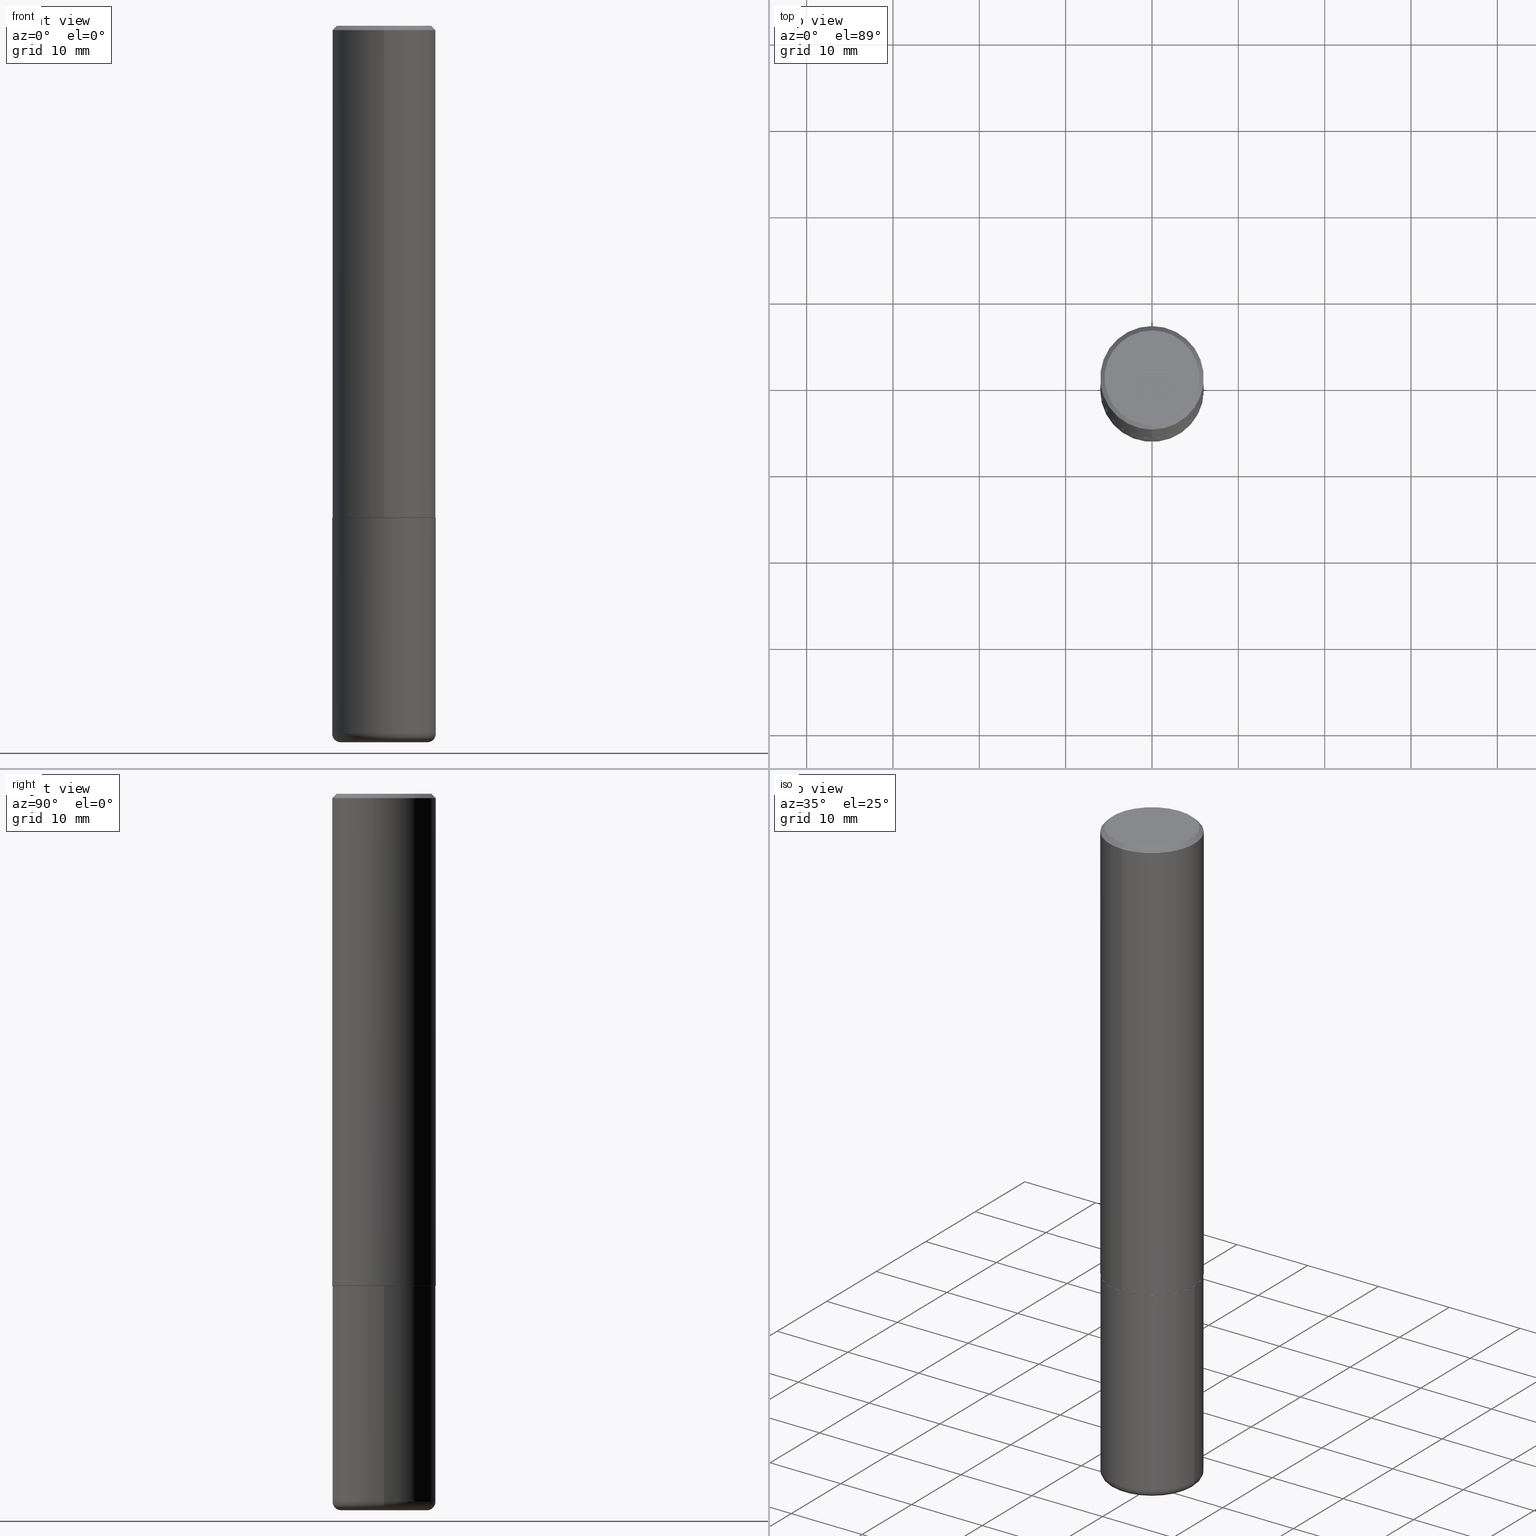
[diagram: canonical four-view strip — front | top / right | iso, engineering-drawing reading convention]
A machine part, canonical four-view strip (front | top / right | iso — engineering-drawing reading convention). The complete STEP part file that produces these views, byte-faithful:
ISO-10303-21;
HEADER;
FILE_DESCRIPTION (( 'STEP AP203' ),
    '1' );
FILE_NAME ('47164.STEP',
    '2024-03-06T00:30:45',
    ( '' ),
    ( '' ),
    'SwSTEP 2.0',
    'SolidWorks 2023',
    '' );
FILE_SCHEMA (( 'CONFIG_CONTROL_DESIGN' ));
ENDSEC;

DATA;
#1 = CIRCLE ( 'NONE', #234, 0.2361999999999999933 ) ;
#2 = AXIS2_PLACEMENT_3D ( 'NONE', #202, #211, #338 ) ;
#3 = CARTESIAN_POINT ( 'NONE',  ( 5.487876547960065873E-29, -7.835233272497903917E-15, -2.244100000000000428 ) ) ;
#4 = CIRCLE ( 'NONE', #101, 0.2352000000000000202 ) ;
#5 = ADVANCED_FACE ( 'NONE', ( #347 ), #193, .T. ) ;
#6 =( NAMED_UNIT ( * ) PLANE_ANGLE_UNIT ( ) SI_UNIT ( $, .RADIAN. ) );
#7 = VERTEX_POINT ( 'NONE', #119 ) ;
#8 = LENGTH_MEASURE_WITH_UNIT ( LENGTH_MEASURE( 0.02539999999999999897 ), #98 );
#9 = PRODUCT_DEFINITION ( 'UNKNOWN', '', #311, #222 ) ;
#10 = CIRCLE ( 'NONE', #118, 0.2362000000000002709 ) ;
#11 = CARTESIAN_POINT ( 'NONE',  ( 4.886397103869442398E-31, -6.989464944289237832E-17, -0.02000000000000009062 ) ) ;
#12 = EDGE_LOOP ( 'NONE', ( #265, #291, #300, #360 ) ) ;
#13 = ORIENTED_EDGE ( 'NONE', *, *, #292, .T. ) ;
#14 = VERTEX_POINT ( 'NONE', #122 ) ;
#15 = PERSON_AND_ORGANIZATION ( #139, #76 ) ;
#16 = DIRECTION ( 'NONE',  ( -2.443198551934710321E-29, 3.494732472144603410E-15, 1.000000000000000000 ) ) ;
#17 = VECTOR ( 'NONE', #130, 39.37007874015748143 ) ;
#18 = ADVANCED_FACE ( 'NONE', ( #85 ), #235, .T. ) ;
#19 = DIRECTION ( 'NONE',  ( 1.000000000000000000, -6.982962677686266711E-15, 4.876176775795936353E-29 ) ) ;
#20 = CARTESIAN_POINT ( 'NONE',  ( 1.509716530915772690E-15, 0.2162000000000002808, -9.024733938762408486E-16 ) ) ;
#21 = CC_DESIGN_PERSON_AND_ORGANIZATION_ASSIGNMENT ( #301, #208, ( #311 ) ) ;
#22 = CALENDAR_DATE ( 2024, 5, 3 ) ;
#23 = CARTESIAN_POINT ( 'NONE',  ( 5.482781870396684000E-29, -7.842529140739704038E-15, -2.244100000000000428 ) ) ;
#24 = AXIS2_PLACEMENT_3D ( 'NONE', #199, #297, #232 ) ;
#25 = APPROVAL_DATE_TIME ( #182, #155 ) ;
#26 = DIRECTION ( 'NONE',  ( -2.445468806185136597E-29, 3.491481338843145583E-15, 1.000000000000000000 ) ) ;
#27 = ADVANCED_FACE ( 'NONE', ( #59 ), #88, .F. ) ;
#28 = LINE ( 'NONE', #384, #143 ) ;
#29 = ADVANCED_FACE ( 'NONE', ( #339 ), #400, .T. ) ;
#30 = DIRECTION ( 'NONE',  ( 1.000000000000000000, -6.982962677686265922E-15, 0.000000000000000000 ) ) ;
#31 = AXIS2_PLACEMENT_3D ( 'NONE', #247, #371, #82 ) ;
#32 = CARTESIAN_POINT ( 'NONE',  ( -1.649375784469496920E-15, -0.2362000000000001321, 8.254558099205557624E-16 ) ) ;
#33 = DIRECTION ( 'NONE',  ( -2.445468806185136597E-29, 3.491481338843145583E-15, 1.000000000000000000 ) ) ;
#34 = DIRECTION ( 'NONE',  ( -2.443198551934710321E-29, 3.494732472144603016E-15, 1.000000000000000000 ) ) ;
#35 = AXIS2_PLACEMENT_3D ( 'NONE', #373, #307, #337 ) ;
#36 =( GEOMETRIC_REPRESENTATION_CONTEXT ( 3 ) GLOBAL_UNCERTAINTY_ASSIGNED_CONTEXT ( ( #92 ) ) GLOBAL_UNIT_ASSIGNED_CONTEXT ( ( #358, #6, #256 ) ) REPRESENTATION_CONTEXT ( 'NONE', 'WORKASPACE' ) );
#37 = DIRECTION ( 'NONE',  ( -2.443198551934710321E-29, 3.494732472144603410E-15, 1.000000000000000000 ) ) ;
#38 = DIRECTION ( 'NONE',  ( -6.982962677686265922E-15, -1.000000000000000000, 3.487819265831411744E-15 ) ) ;
#39 = EDGE_LOOP ( 'NONE', ( #142, #168, #394, #179 ) ) ;
#40 = LINE ( 'NONE', #294, #374 ) ;
#41 = ORIENTED_EDGE ( 'NONE', *, *, #105, .F. ) ;
#42 = CONICAL_SURFACE ( 'NONE', #35, 0.2352000000000000202, 0.7853981633975336552 ) ;
#43 = LINE ( 'NONE', #364, #204 ) ;
#44 = LOCAL_TIME ( 19, 30, 45.00000000000000000, #217 ) ;
#45 = ORIENTED_EDGE ( 'NONE', *, *, #407, .T. ) ;
#46 = EDGE_LOOP ( 'NONE', ( #403, #73, #298, #113 ) ) ;
#47 = FACE_OUTER_BOUND ( 'NONE', #12, .T. ) ;
#48 = VERTEX_POINT ( 'NONE', #112 ) ;
#49 = APPROVAL_ROLE ( '' ) ;
#50 = DIRECTION ( 'NONE',  ( 7.105427357601001859E-15, 1.000000000000000000, -3.491481338843145583E-15 ) ) ;
#51 = DIRECTION ( 'NONE',  ( 1.000000000000000000, -6.982962677686266711E-15, 4.876176775795936353E-29 ) ) ;
#52 = AXIS2_PLACEMENT_3D ( 'NONE', #194, #316, #30 ) ;
#53 = APPROVAL_PERSON_ORGANIZATION ( #15, #354, #49 ) ;
#54 = DIRECTION ( 'NONE',  ( -6.982962677686265922E-15, -1.000000000000000000, 3.494732472144603410E-15 ) ) ;
#55 = ORIENTED_EDGE ( 'NONE', *, *, #94, .F. ) ;
#56 = MECHANICAL_CONTEXT ( 'NONE', #187, 'mechanical' ) ;
#57 = CARTESIAN_POINT ( 'NONE',  ( 5.482781870396684000E-29, -7.842529140739704038E-15, -2.244100000000000428 ) ) ;
#58 = PERSON_AND_ORGANIZATION_ROLE ( 'classification_officer' ) ;
#59 = FACE_OUTER_BOUND ( 'NONE', #86, .T. ) ;
#60 = CIRCLE ( 'NONE', #260, 0.1968000000000000027 ) ;
#61 = EDGE_CURVE ( 'NONE', #228, #117, #4, .T. ) ;
#62 = CARTESIAN_POINT ( 'NONE',  ( 0.2361999999999999933, -1.649375784469496131E-15, 1.151752954443000088E-29 ) ) ;
#63 = DIRECTION ( 'NONE',  ( 4.937700262164537787E-15, 0.7071067811865436870, -0.7071067811865513475 ) ) ;
#64 = VECTOR ( 'NONE', #63, 39.37007874015748143 ) ;
#65 = DIRECTION ( 'NONE',  ( -6.982962677686265922E-15, -1.000000000000000000, 3.494732472144603410E-15 ) ) ;
#66 = ADVANCED_FACE ( 'NONE', ( #313 ), #277, .T. ) ;
#67 = DIRECTION ( 'NONE',  ( -4.937700262164969294E-15, -0.7071067811866054154, 0.7071067811864896191 ) ) ;
#68 = CIRCLE ( 'NONE', #275, 0.2352000000000000202 ) ;
#69 = ADVANCED_FACE ( 'NONE', ( #121 ), #380, .T. ) ;
#70 = DIRECTION ( 'NONE',  ( -2.445468806185136597E-29, 3.491481338843145583E-15, 1.000000000000000000 ) ) ;
#71 = ORIENTED_EDGE ( 'NONE', *, *, #151, .F. ) ;
#72 = ADVANCED_FACE ( 'NONE', ( #246 ), #90, .T. ) ;
#73 = ORIENTED_EDGE ( 'NONE', *, *, #252, .T. ) ;
#74 = CIRCLE ( 'NONE', #398, 0.2362000000000000210 ) ;
#75 = CARTESIAN_POINT ( 'NONE',  ( 5.480338671844748839E-29, -7.839034408267561952E-15, -2.243100000000000094 ) ) ;
#76 = ORGANIZATION ( 'UNSPECIFIED', 'UNSPECIFIED', '' ) ;
#77 = AXIS2_PLACEMENT_3D ( 'NONE', #23, #153, #377 ) ;
#78 = ORIENTED_EDGE ( 'NONE', *, *, #99, .F. ) ;
#79 = ADVANCED_FACE ( 'NONE', ( #180 ), #242, .F. ) ;
#80 = ORIENTED_EDGE ( 'NONE', *, *, #248, .F. ) ;
#81 = APPLICATION_PROTOCOL_DEFINITION ( 'international standard', 'config_control_design', 1994, #412 ) ;
#82 = DIRECTION ( 'NONE',  ( 6.982962677686265922E-15, 1.000000000000000000, -3.487819265831411744E-15 ) ) ;
#83 = ADVANCED_FACE ( 'NONE', ( #116 ), #42, .T. ) ;
#84 = AXIS2_PLACEMENT_3D ( 'NONE', #167, #393, #104 ) ;
#85 = FACE_OUTER_BOUND ( 'NONE', #262, .T. ) ;
#86 = EDGE_LOOP ( 'NONE', ( #41, #331 ) ) ;
#87 = PERSON_AND_ORGANIZATION ( #139, #76 ) ;
#88 = PLANE ( 'NONE',  #254 ) ;
#89 = CALENDAR_DATE ( 2024, 5, 3 ) ;
#90 = CYLINDRICAL_SURFACE ( 'NONE', #219, 0.2362000000000001321 ) ;
#91 = CARTESIAN_POINT ( 'NONE',  ( 7.894706947007477118E-29, -1.127154920618732880E-14, -3.228299999999999947 ) ) ;
#92 = UNCERTAINTY_MEASURE_WITH_UNIT (LENGTH_MEASURE( 1.000000000000000082E-05 ), #358, 'distance_accuracy_value', 'NONE');
#93 = ADVANCED_BREP_SHAPE_REPRESENTATION ( '47164', ( #334, #346, #2 ), #36 ) ;
#94 = EDGE_CURVE ( 'NONE', #231, #257, #324, .T. ) ;
#95 = DIRECTION ( 'NONE',  ( 2.438088387897960049E-29, -3.491481338843145188E-15, -1.000000000000000000 ) ) ;
#96 = CARTESIAN_POINT ( 'NONE',  ( 1.656106381740712274E-29, -2.048112544989781332E-14, -3.267700000000000937 ) ) ;
#97 = VECTOR ( 'NONE', #34, 39.37007874015748143 ) ;
#98 =( LENGTH_UNIT ( ) NAMED_UNIT ( * ) SI_UNIT ( $, .METRE. ) );
#99 = EDGE_CURVE ( 'NONE', #408, #397, #10, .T. ) ;
#100 = ORIENTED_EDGE ( 'NONE', *, *, #248, .T. ) ;
#101 = AXIS2_PLACEMENT_3D ( 'NONE', #57, #278, #413 ) ;
#102 = LOCAL_TIME ( 19, 30, 45.00000000000000000, #115 ) ;
#103 = CC_DESIGN_APPROVAL ( #155, ( #311 ) ) ;
#104 = DIRECTION ( 'NONE',  ( 1.000000000000000000, -6.982962677686261977E-15, 0.000000000000000000 ) ) ;
#105 = EDGE_CURVE ( 'NONE', #117, #228, #68, .T. ) ;
#106 = ORIENTED_EDGE ( 'NONE', *, *, #163, .T. ) ;
#107 = CARTESIAN_POINT ( 'NONE',  ( 0.1968000000000000027, -1.264579626115598374E-14, -3.228299999999999947 ) ) ;
#108 = ORIENTED_EDGE ( 'NONE', *, *, #359, .F. ) ;
#109 = CIRCLE ( 'NONE', #125, 0.03940000000000033753 ) ;
#110 = VERTEX_POINT ( 'NONE', #212 ) ;
#111 = PERSON_AND_ORGANIZATION_ROLE ( 'design_supplier' ) ;
#112 = CARTESIAN_POINT ( 'NONE',  ( 1.579546157692634608E-15, 0.2162000000000002808, -1.049385627274817561E-15 ) ) ;
#113 = ORIENTED_EDGE ( 'NONE', *, *, #352, .F. ) ;
#114 = CC_DESIGN_PERSON_AND_ORGANIZATION_ASSIGNMENT ( #375, #58, ( #399 ) ) ;
#115 = COORDINATED_UNIVERSAL_TIME_OFFSET ( 5, 0, .BEHIND. ) ;
#116 = FACE_OUTER_BOUND ( 'NONE', #388, .T. ) ;
#117 = VERTEX_POINT ( 'NONE', #127 ) ;
#118 = AXIS2_PLACEMENT_3D ( 'NONE', #302, #16, #145 ) ;
#119 = CARTESIAN_POINT ( 'NONE',  ( 0.1968000000000000027, -1.278336062590640454E-14, -3.267700000000000937 ) ) ;
#120 = SECURITY_CLASSIFICATION_LEVEL ( 'unclassified' ) ;
#121 = FACE_OUTER_BOUND ( 'NONE', #171, .T. ) ;
#122 = CARTESIAN_POINT ( 'NONE',  ( -1.551844647095920733E-15, -0.2162000000000002808, 4.617366936805109079E-16 ) ) ;
#123 = CARTESIAN_POINT ( 'NONE',  ( -0.2362000000000001321, -9.593247264321970832E-15, -3.228299999999999947 ) ) ;
#124 = CONICAL_SURFACE ( 'NONE', #381, 0.2361999999999999933, 0.7853981633974463916 ) ;
#125 = AXIS2_PLACEMENT_3D ( 'NONE', #107, #134, #290 ) ;
#126 = CARTESIAN_POINT ( 'NONE',  ( -0.2362000000000000766, -7.875089297477259967E-15, -2.244100000000000428 ) ) ;
#127 = CARTESIAN_POINT ( 'NONE',  ( -1.642392821791755093E-15, -0.2352000000000078750, -2.244099999999999540 ) ) ;
#128 = DIRECTION ( 'NONE',  ( 2.443198551934710321E-29, -3.494732472144603410E-15, -1.000000000000000000 ) ) ;
#129 = AXIS2_PLACEMENT_3D ( 'NONE', #205, #323, #390 ) ;
#130 = DIRECTION ( 'NONE',  ( -2.445468806185136877E-29, 3.491481338843145188E-15, 1.000000000000000000 ) ) ;
#131 = ORIENTED_EDGE ( 'NONE', *, *, #61, .T. ) ;
#132 = AXIS2_PLACEMENT_3D ( 'NONE', #75, #327, #230 ) ;
#133 = CC_DESIGN_SECURITY_CLASSIFICATION ( #399, ( #311 ) ) ;
#134 = DIRECTION ( 'NONE',  ( -6.982962677686266711E-15, -1.000000000000000000, 3.491481338843145583E-15 ) ) ;
#135 = CLOSED_SHELL ( 'NONE', ( #69, #329, #173, #66, #5, #227 ) ) ;
#136 = VERTEX_POINT ( 'NONE', #320 ) ;
#137 = ORIENTED_EDGE ( 'NONE', *, *, #238, .T. ) ;
#138 = DIRECTION ( 'NONE',  ( 1.000000000000000000, -6.982962677686262766E-15, 4.883557194083112340E-29 ) ) ;
#139 = PERSON ( 'UNSPECIFIED', 'UNSPECIFIED', 'UNSPECIFIED', ('UNSPECIFIED'), ('UNSPECIFIED'), ('UNSPECIFIED') ) ;
#140 = EDGE_LOOP ( 'NONE', ( #225, #156, #100, #13 ) ) ;
#141 = CARTESIAN_POINT ( 'NONE',  ( 7.991058417971172834E-29, -1.140911357093774960E-14, -3.267700000000000937 ) ) ;
#142 = ORIENTED_EDGE ( 'NONE', *, *, #314, .T. ) ;
#143 = VECTOR ( 'NONE', #67, 39.37007874015748143 ) ;
#144 = DATE_AND_TIME ( #147, #192 ) ;
#145 = DIRECTION ( 'NONE',  ( -6.982962677686265922E-15, -1.000000000000000000, 3.469747663417773058E-15 ) ) ;
#146 = EDGE_CURVE ( 'NONE', #397, #207, #322, .T. ) ;
#147 = CALENDAR_DATE ( 2024, 5, 3 ) ;
#148 = DIRECTION ( 'NONE',  ( 2.443198551934710321E-29, -3.494732472144603016E-15, -1.000000000000000000 ) ) ;
#149 = COORDINATED_UNIVERSAL_TIME_OFFSET ( 5, 0, .BEHIND. ) ;
#150 = DIRECTION ( 'NONE',  ( -6.982962677686265922E-15, -1.000000000000000000, 3.494732472144603016E-15 ) ) ;
#151 = EDGE_CURVE ( 'NONE', #110, #241, #74, .T. ) ;
#152 = COORDINATED_UNIVERSAL_TIME_OFFSET ( 5, 0, .BEHIND. ) ;
#153 = DIRECTION ( 'NONE',  ( -2.443198551934710321E-29, 3.494732472144603410E-15, 1.000000000000000000 ) ) ;
#154 = APPROVAL_DATE_TIME ( #144, #354 ) ;
#155 = APPROVAL ( #345, 'UNSPECIFIED' ) ;
#156 = ORIENTED_EDGE ( 'NONE', *, *, #238, .F. ) ;
#157 = CARTESIAN_POINT ( 'NONE',  ( 1.674749228186611702E-15, 0.2351999999999921653, -2.244100000000000872 ) ) ;
#158 = CARTESIAN_POINT ( 'NONE',  ( 1.649375784469496525E-15, 0.2361999999999999378, -0.02000000000000091288 ) ) ;
#159 = CIRCLE ( 'NONE', #340, 0.2361999999999999933 ) ;
#160 = DIRECTION ( 'NONE',  ( 6.982962677686265922E-15, 1.000000000000000000, -3.487819265831411744E-15 ) ) ;
#161 = DIRECTION ( 'NONE',  ( 1.000000000000000000, -6.982962677686268288E-15, 0.000000000000000000 ) ) ;
#162 = CARTESIAN_POINT ( 'NONE',  ( -1.649375784469443080E-15, -0.2362000000000081257, -2.243099999999999206 ) ) ;
#163 = EDGE_CURVE ( 'NONE', #117, #397, #28, .T. ) ;
#164 = ORIENTED_EDGE ( 'NONE', *, *, #105, .T. ) ;
#165 = DIRECTION ( 'NONE',  ( 1.000000000000000000, -6.982962677686261977E-15, 0.000000000000000000 ) ) ;
#166 = ORIENTED_EDGE ( 'NONE', *, *, #289, .T. ) ;
#167 = CARTESIAN_POINT ( 'NONE',  ( 7.991058417971172834E-29, -1.140911357093774960E-14, -3.267700000000000937 ) ) ;
#168 = ORIENTED_EDGE ( 'NONE', *, *, #94, .T. ) ;
#169 = ADVANCED_FACE ( 'NONE', ( #315 ), #124, .T. ) ;
#170 = CARTESIAN_POINT ( 'NONE',  ( 7.894706947007477118E-29, -1.127154920618732880E-14, -3.228299999999999947 ) ) ;
#171 = EDGE_LOOP ( 'NONE', ( #269, #206, #71, #216 ) ) ;
#172 = ORIENTED_EDGE ( 'NONE', *, *, #376, .T. ) ;
#173 = ADVANCED_FACE ( 'NONE', ( #253 ), #383, .F. ) ;
#174 = COORDINATED_UNIVERSAL_TIME_OFFSET ( 5, 0, .BEHIND. ) ;
#175 = DIRECTION ( 'NONE',  ( -1.000000000000000000, 7.105427357601014480E-15, 0.000000000000000000 ) ) ;
#176 = AXIS2_PLACEMENT_3D ( 'NONE', #3, #95, #288 ) ;
#177 = APPROVAL_STATUS ( 'not_yet_approved' ) ;
#178 = CC_DESIGN_APPROVAL ( #266, ( #399 ) ) ;
#179 = ORIENTED_EDGE ( 'NONE', *, *, #407, .F. ) ;
#180 = FACE_OUTER_BOUND ( 'NONE', #336, .T. ) ;
#181 = EDGE_LOOP ( 'NONE', ( #55, #369, #45, #321 ) ) ;
#182 = DATE_AND_TIME ( #22, #318 ) ;
#183 = CARTESIAN_POINT ( 'NONE',  ( 0.000000000000000000, 0.000000000000000000, 0.000000000000000000 ) ) ;
#184 = CALENDAR_DATE ( 2024, 5, 3 ) ;
#185 = TOROIDAL_SURFACE ( 'NONE', #317, 0.1968000000000000027, 0.03940000000000031671 ) ;
#186 = DIRECTION ( 'NONE',  ( -2.443198551934710321E-29, 3.494732472144603016E-15, 1.000000000000000000 ) ) ;
#187 = APPLICATION_CONTEXT ( 'configuration controlled 3d designs of mechanical parts and assemblies' ) ;
#188 = EDGE_CURVE ( 'NONE', #257, #241, #417, .T. ) ;
#189 = FACE_OUTER_BOUND ( 'NONE', #365, .T. ) ;
#190 = DIRECTION ( 'NONE',  ( -2.443198551934710321E-29, 3.494732472144603016E-15, 1.000000000000000000 ) ) ;
#191 = AXIS2_PLACEMENT_3D ( 'NONE', #214, #26, #51 ) ;
#192 = LOCAL_TIME ( 19, 30, 45.00000000000000000, #149 ) ;
#193 = TOROIDAL_SURFACE ( 'NONE', #350, 0.1968000000000000027, 0.03940000000000031671 ) ;
#194 = CARTESIAN_POINT ( 'NONE',  ( 7.894706947007477118E-29, -1.127154920618732880E-14, -3.228299999999999947 ) ) ;
#195 = PRODUCT_DEFINITION_SHAPE ( 'NONE', 'NONE',  #9 ) ;
#196 = DIRECTION ( 'NONE',  ( 1.000000000000000000, -6.982962677686265922E-15, 0.000000000000000000 ) ) ;
#197 = DIRECTION ( 'NONE',  ( -2.445468806185136597E-29, 3.491481338843145583E-15, 1.000000000000000000 ) ) ;
#198 = APPLICATION_PROTOCOL_DEFINITION ( 'international standard', 'config_control_design', 1994, #187 ) ;
#199 = CARTESIAN_POINT ( 'NONE',  ( 5.487876547960065873E-29, -7.835233272497903917E-15, -2.244100000000000428 ) ) ;
#200 = EDGE_LOOP ( 'NONE', ( #326, #362 ) ) ;
#201 = EDGE_CURVE ( 'NONE', #136, #257, #249, .T. ) ;
#202 = CARTESIAN_POINT ( 'NONE',  ( 0.000000000000000000, 0.000000000000000000, 0.000000000000000000 ) ) ;
#203 = ORIENTED_EDGE ( 'NONE', *, *, #391, .F. ) ;
#204 = VECTOR ( 'NONE', #299, 39.37007874015748143 ) ;
#205 = CARTESIAN_POINT ( 'NONE',  ( 7.178715118017931868E-45, -1.026837905226585320E-30, -2.938244667971532280E-16 ) ) ;
#206 = ORIENTED_EDGE ( 'NONE', *, *, #188, .T. ) ;
#207 = VERTEX_POINT ( 'NONE', #287 ) ;
#208 = PERSON_AND_ORGANIZATION_ROLE ( 'creator' ) ;
#209 = EDGE_LOOP ( 'NONE', ( #108, #166, #308, #80 ) ) ;
#210 = CC_DESIGN_DATE_AND_TIME_ASSIGNMENT ( #396, #401, ( #9 ) ) ;
#211 = DIRECTION ( 'NONE',  ( 0.000000000000000000, 0.000000000000000000, 1.000000000000000000 ) ) ;
#212 = CARTESIAN_POINT ( 'NONE',  ( 0.2362000000000000210, -9.484609056967400443E-15, -2.244100000000000428 ) ) ;
#213 = CIRCLE ( 'NONE', #243, 0.2162000000000002808 ) ;
#214 = CARTESIAN_POINT ( 'NONE',  ( 0.000000000000000000, 0.000000000000000000, 0.000000000000000000 ) ) ;
#215 = SHAPE_DEFINITION_REPRESENTATION ( #195, #93 ) ;
#216 = ORIENTED_EDGE ( 'NONE', *, *, #285, .F. ) ;
#217 = COORDINATED_UNIVERSAL_TIME_OFFSET ( 5, 0, .BEHIND. ) ;
#218 = ORIENTED_EDGE ( 'NONE', *, *, #370, .F. ) ;
#219 = AXIS2_PLACEMENT_3D ( 'NONE', #305, #271, #54 ) ;
#220 = PLANE ( 'NONE',  #332 ) ;
#221 = LINE ( 'NONE', #62, #386 ) ;
#222 = DESIGN_CONTEXT ( 'detailed design', #412, 'design' ) ;
#223 = CARTESIAN_POINT ( 'NONE',  ( 7.178715118017931868E-45, -1.026837905226585320E-30, -2.938244667971532280E-16 ) ) ;
#224 = AXIS2_PLACEMENT_3D ( 'NONE', #274, #50, #175 ) ;
#225 = ORIENTED_EDGE ( 'NONE', *, *, #289, .F. ) ;
#226 = CARTESIAN_POINT ( 'NONE',  ( -0.1968000000000000027, -9.802006365641918959E-15, -3.267700000000000937 ) ) ;
#227 = ADVANCED_FACE ( 'NONE', ( #189 ), #220, .T. ) ;
#228 = VERTEX_POINT ( 'NONE', #157 ) ;
#229 = CIRCLE ( 'NONE', #52, 0.2361999999999999655 ) ;
#230 = DIRECTION ( 'NONE',  ( -6.982962677686265922E-15, -1.000000000000000000, 3.469747663417773058E-15 ) ) ;
#231 = VERTEX_POINT ( 'NONE', #226 ) ;
#232 = DIRECTION ( 'NONE',  ( 1.000000000000000000, -6.982962677686268288E-15, 0.000000000000000000 ) ) ;
#233 = ORIENTED_EDGE ( 'NONE', *, *, #286, .F. ) ;
#234 = AXIS2_PLACEMENT_3D ( 'NONE', #11, #335, #363 ) ;
#235 = CONICAL_SURFACE ( 'NONE', #77, 0.2352000000000000202, 0.7853981633975336552 ) ;
#236 = PERSON_AND_ORGANIZATION_ROLE ( 'creator' ) ;
#237 = EDGE_LOOP ( 'NONE', ( #272, #328, #203, #406 ) ) ;
#238 = EDGE_CURVE ( 'NONE', #48, #14, #213, .T. ) ;
#239 = APPROVAL_STATUS ( 'not_yet_approved' ) ;
#240 = DIRECTION ( 'NONE',  ( -6.982962677686265922E-15, -1.000000000000000000, 3.484499991918702719E-15 ) ) ;
#241 = VERTEX_POINT ( 'NONE', #126 ) ;
#242 = PLANE ( 'NONE',  #304 ) ;
#243 = AXIS2_PLACEMENT_3D ( 'NONE', #223, #356, #65 ) ;
#244 = PERSON_AND_ORGANIZATION ( #139, #76 ) ;
#245 = DATE_TIME_ROLE ( 'classification_date' ) ;
#246 = FACE_OUTER_BOUND ( 'NONE', #237, .T. ) ;
#247 = CARTESIAN_POINT ( 'NONE',  ( 4.886397103869442398E-31, -6.989464944289237832E-17, -0.02000000000000009062 ) ) ;
#248 = EDGE_CURVE ( 'NONE', #48, #261, #279, .T. ) ;
#249 = CIRCLE ( 'NONE', #415, 0.2361999999999999655 ) ;
#250 = CARTESIAN_POINT ( 'NONE',  ( 5.487876547960065873E-29, -7.835233272497903917E-15, -2.244100000000000428 ) ) ;
#251 = LOCAL_TIME ( 19, 30, 45.00000000000000000, #152 ) ;
#252 = EDGE_CURVE ( 'NONE', #257, #136, #229, .T. ) ;
#253 = FACE_OUTER_BOUND ( 'NONE', #200, .T. ) ;
#254 = AXIS2_PLACEMENT_3D ( 'NONE', #344, #186, #150 ) ;
#255 = CARTESIAN_POINT ( 'NONE',  ( -0.2361999999999999933, 1.678301941865356591E-15, -1.161852468318208757E-29 ) ) ;
#256 =( NAMED_UNIT ( * ) SI_UNIT ( $, .STERADIAN. ) SOLID_ANGLE_UNIT ( ) );
#257 = VERTEX_POINT ( 'NONE', #123 ) ;
#258 = ORIENTED_EDGE ( 'NONE', *, *, #163, .F. ) ;
#259 = CARTESIAN_POINT ( 'NONE',  ( 4.886397103869442398E-31, -6.989464944289237832E-17, -0.02000000000000009062 ) ) ;
#260 = AXIS2_PLACEMENT_3D ( 'NONE', #141, #197, #165 ) ;
#261 = VERTEX_POINT ( 'NONE', #158 ) ;
#262 = EDGE_LOOP ( 'NONE', ( #306, #131, #106, #78 ) ) ;
#263 = DIRECTION ( 'NONE',  ( 5.024295867788490741E-15, 0.7071067811866103003, 0.7071067811864847341 ) ) ;
#264 = CARTESIAN_POINT ( 'NONE',  ( 1.678301941865385582E-15, 0.2361999999999924160, -2.243100000000000982 ) ) ;
#265 = ORIENTED_EDGE ( 'NONE', *, *, #273, .F. ) ;
#266 = APPROVAL ( #177, 'UNSPECIFIED' ) ;
#267 = PERSON_AND_ORGANIZATION ( #139, #76 ) ;
#268 = DIRECTION ( 'NONE',  ( -2.443198551934710321E-29, 3.494732472144603410E-15, 1.000000000000000000 ) ) ;
#269 = ORIENTED_EDGE ( 'NONE', *, *, #201, .T. ) ;
#270 = CALENDAR_DATE ( 2024, 5, 3 ) ;
#271 = DIRECTION ( 'NONE',  ( -2.443198551934710321E-29, 3.494732472144603410E-15, 1.000000000000000000 ) ) ;
#272 = ORIENTED_EDGE ( 'NONE', *, *, #370, .T. ) ;
#273 = EDGE_CURVE ( 'NONE', #408, #261, #418, .T. ) ;
#274 = CARTESIAN_POINT ( 'NONE',  ( -0.1968000000000000027, -9.873201102211451027E-15, -3.228299999999999947 ) ) ;
#275 = AXIS2_PLACEMENT_3D ( 'NONE', #310, #268, #240 ) ;
#276 = APPROVAL_PERSON_ORGANIZATION ( #372, #266, #404 ) ;
#277 = CYLINDRICAL_SURFACE ( 'NONE', #389, 0.2361999999999999933 ) ;
#278 = DIRECTION ( 'NONE',  ( -2.443198551934710321E-29, 3.494732472144603410E-15, 1.000000000000000000 ) ) ;
#279 = LINE ( 'NONE', #357, #64 ) ;
#280 = CC_DESIGN_PERSON_AND_ORGANIZATION_ASSIGNMENT ( #368, #309, ( #385 ) ) ;
#281 = CIRCLE ( 'NONE', #84, 0.1968000000000000027 ) ;
#282 = VECTOR ( 'NONE', #190, 39.37007874015748143 ) ;
#283 = DIRECTION ( 'NONE',  ( -1.000000000000000000, 6.982962677686265922E-15, -4.876176775795935793E-29 ) ) ;
#284 = APPROVAL_PERSON_ORGANIZATION ( #244, #155, #312 ) ;
#285 = EDGE_CURVE ( 'NONE', #136, #110, #221, .T. ) ;
#286 = EDGE_CURVE ( 'NONE', #231, #7, #281, .T. ) ;
#287 = CARTESIAN_POINT ( 'NONE',  ( -1.620449627073635079E-15, -0.2362000000000000766, -0.01999999999999926489 ) ) ;
#288 = DIRECTION ( 'NONE',  ( -1.000000000000000000, 6.982962677686265922E-15, -4.876176775795935793E-29 ) ) ;
#289 = EDGE_CURVE ( 'NONE', #14, #207, #43, .T. ) ;
#290 = DIRECTION ( 'NONE',  ( 1.000000000000000000, -6.982962677686268288E-15, 0.000000000000000000 ) ) ;
#291 = ORIENTED_EDGE ( 'NONE', *, *, #99, .T. ) ;
#292 = EDGE_CURVE ( 'NONE', #261, #207, #159, .T. ) ;
#293 = CARTESIAN_POINT ( 'NONE',  ( 0.000000000000000000, 0.000000000000000000, 0.000000000000000000 ) ) ;
#294 = CARTESIAN_POINT ( 'NONE',  ( 1.671196514507810409E-15, 0.2351999999999921653, -2.244100000000000872 ) ) ;
#295 = CIRCLE ( 'NONE', #129, 0.2162000000000002808 ) ;
#296 = DIMENSIONAL_EXPONENTS ( 1.000000000000000000, 0.000000000000000000, 0.000000000000000000, 0.000000000000000000, 0.000000000000000000, 0.000000000000000000, 0.000000000000000000 ) ;
#297 = DIRECTION ( 'NONE',  ( -2.445468806185136597E-29, 3.491481338843145583E-15, 1.000000000000000000 ) ) ;
#298 = ORIENTED_EDGE ( 'NONE', *, *, #285, .T. ) ;
#299 = DIRECTION ( 'NONE',  ( -4.851104656540954020E-15, -0.7071067811865485719, -0.7071067811865464625 ) ) ;
#300 = ORIENTED_EDGE ( 'NONE', *, *, #146, .T. ) ;
#301 = PERSON_AND_ORGANIZATION ( #139, #76 ) ;
#302 = CARTESIAN_POINT ( 'NONE',  ( 5.480338671844748839E-29, -7.839034408267561952E-15, -2.243100000000000094 ) ) ;
#303 = CLOSED_SHELL ( 'NONE', ( #83, #72, #29, #169, #395, #18, #27, #79 ) ) ;
#304 = AXIS2_PLACEMENT_3D ( 'NONE', #20, #148, #405 ) ;
#305 = CARTESIAN_POINT ( 'NONE',  ( 0.000000000000000000, 0.000000000000000000, 0.000000000000000000 ) ) ;
#306 = ORIENTED_EDGE ( 'NONE', *, *, #376, .F. ) ;
#307 = DIRECTION ( 'NONE',  ( -2.443198551934710321E-29, 3.494732472144603410E-15, 1.000000000000000000 ) ) ;
#308 = ORIENTED_EDGE ( 'NONE', *, *, #391, .T. ) ;
#309 = PERSON_AND_ORGANIZATION_ROLE ( 'design_owner' ) ;
#310 = CARTESIAN_POINT ( 'NONE',  ( 5.482781870396684000E-29, -7.842529140739704038E-15, -2.244100000000000428 ) ) ;
#311 = PRODUCT_DEFINITION_FORMATION_WITH_SPECIFIED_SOURCE ( 'ANY', '', #385, .NOT_KNOWN. ) ;
#312 = APPROVAL_ROLE ( '' ) ;
#313 = FACE_OUTER_BOUND ( 'NONE', #46, .T. ) ;
#314 = EDGE_CURVE ( 'NONE', #7, #231, #60, .T. ) ;
#315 = FACE_OUTER_BOUND ( 'NONE', #140, .T. ) ;
#316 = DIRECTION ( 'NONE',  ( -2.445468806185136597E-29, 3.491481338843145583E-15, 1.000000000000000000 ) ) ;
#317 = AXIS2_PLACEMENT_3D ( 'NONE', #170, #70, #138 ) ;
#318 = LOCAL_TIME ( 19, 30, 45.00000000000000000, #174 ) ;
#319 = PRODUCT_RELATED_PRODUCT_CATEGORY ( 'detail', '', ( #385 ) ) ;
#320 = CARTESIAN_POINT ( 'NONE',  ( 0.2362000000000001321, -1.292092499065682533E-14, -3.228299999999999947 ) ) ;
#321 = ORIENTED_EDGE ( 'NONE', *, *, #252, .F. ) ;
#322 = LINE ( 'NONE', #32, #97 ) ;
#323 = DIRECTION ( 'NONE',  ( -2.443198551934710321E-29, 3.494732472144603410E-15, 1.000000000000000000 ) ) ;
#324 = CIRCLE ( 'NONE', #224, 0.03940000000000033753 ) ;
#325 = CYLINDRICAL_SURFACE ( 'NONE', #348, 0.2362000000000001321 ) ;
#326 = ORIENTED_EDGE ( 'NONE', *, *, #151, .T. ) ;
#327 = DIRECTION ( 'NONE',  ( -2.443198551934710321E-29, 3.494732472144603410E-15, 1.000000000000000000 ) ) ;
#328 = ORIENTED_EDGE ( 'NONE', *, *, #273, .T. ) ;
#329 = ADVANCED_FACE ( 'NONE', ( #392 ), #185, .T. ) ;
#330 = DIRECTION ( 'NONE',  ( -2.443198551934710321E-29, 3.494732472144603410E-15, 1.000000000000000000 ) ) ;
#331 = ORIENTED_EDGE ( 'NONE', *, *, #61, .F. ) ;
#332 = AXIS2_PLACEMENT_3D ( 'NONE', #96, #351, #283 ) ;
#333 = CC_DESIGN_PERSON_AND_ORGANIZATION_ASSIGNMENT ( #267, #236, ( #9 ) ) ;
#334 = MANIFOLD_SOLID_BREP ( 'Body-Move/Copy2[1]', #135 ) ;
#335 = DIRECTION ( 'NONE',  ( -2.443198551934710321E-29, 3.494732472144603410E-15, 1.000000000000000000 ) ) ;
#336 = EDGE_LOOP ( 'NONE', ( #137, #341 ) ) ;
#337 = DIRECTION ( 'NONE',  ( -6.982962677686265922E-15, -1.000000000000000000, 3.484499991918702719E-15 ) ) ;
#338 = DIRECTION ( 'NONE',  ( 1.000000000000000000, 0.000000000000000000, 0.000000000000000000 ) ) ;
#339 = FACE_OUTER_BOUND ( 'NONE', #209, .T. ) ;
#340 = AXIS2_PLACEMENT_3D ( 'NONE', #259, #330, #38 ) ;
#341 = ORIENTED_EDGE ( 'NONE', *, *, #359, .T. ) ;
#342 = ORIENTED_EDGE ( 'NONE', *, *, #314, .F. ) ;
#343 = DATE_AND_TIME ( #184, #102 ) ;
#344 = CARTESIAN_POINT ( 'NONE',  ( 5.482781870396684000E-29, -7.842529140739704038E-15, -2.244100000000000428 ) ) ;
#345 = APPROVAL_STATUS ( 'not_yet_approved' ) ;
#346 = MANIFOLD_SOLID_BREP ( 'Body-Move/Copy2[2]', #303 ) ;
#347 = FACE_OUTER_BOUND ( 'NONE', #181, .T. ) ;
#348 = AXIS2_PLACEMENT_3D ( 'NONE', #293, #37, #361 ) ;
#349 = CC_DESIGN_PERSON_AND_ORGANIZATION_ASSIGNMENT ( #87, #111, ( #311 ) ) ;
#350 = AXIS2_PLACEMENT_3D ( 'NONE', #91, #379, #402 ) ;
#351 = DIRECTION ( 'NONE',  ( 2.438088387897960049E-29, -3.491481338843145188E-15, -1.000000000000000000 ) ) ;
#352 = EDGE_CURVE ( 'NONE', #241, #110, #355, .T. ) ;
#353 = DIRECTION ( 'NONE',  ( -2.445468806185136597E-29, 3.491481338843145583E-15, 1.000000000000000000 ) ) ;
#354 = APPROVAL ( #239, 'UNSPECIFIED' ) ;
#355 = CIRCLE ( 'NONE', #24, 0.2362000000000000210 ) ;
#356 = DIRECTION ( 'NONE',  ( -2.443198551934710321E-29, 3.494732472144603410E-15, 1.000000000000000000 ) ) ;
#357 = CARTESIAN_POINT ( 'NONE',  ( 1.649375784469496525E-15, 0.2361999999999999378, -0.02000000000000091288 ) ) ;
#358 =( CONVERSION_BASED_UNIT ( 'INCH', #8 ) LENGTH_UNIT ( ) NAMED_UNIT ( #296 ) );
#359 = EDGE_CURVE ( 'NONE', #14, #48, #295, .T. ) ;
#360 = ORIENTED_EDGE ( 'NONE', *, *, #292, .F. ) ;
#361 = DIRECTION ( 'NONE',  ( -6.982962677686265922E-15, -1.000000000000000000, 3.494732472144603410E-15 ) ) ;
#362 = ORIENTED_EDGE ( 'NONE', *, *, #352, .T. ) ;
#363 = DIRECTION ( 'NONE',  ( -6.982962677686265922E-15, -1.000000000000000000, 3.487819265831411744E-15 ) ) ;
#364 = CARTESIAN_POINT ( 'NONE',  ( -1.620449627073635079E-15, -0.2362000000000000766, -0.01999999999999926489 ) ) ;
#365 = EDGE_LOOP ( 'NONE', ( #342, #233 ) ) ;
#366 = CIRCLE ( 'NONE', #132, 0.2362000000000002709 ) ;
#367 = CC_DESIGN_APPROVAL ( #354, ( #9 ) ) ;
#368 = PERSON_AND_ORGANIZATION ( #139, #76 ) ;
#369 = ORIENTED_EDGE ( 'NONE', *, *, #286, .T. ) ;
#370 = EDGE_CURVE ( 'NONE', #397, #408, #366, .T. ) ;
#371 = DIRECTION ( 'NONE',  ( 2.443198551934710321E-29, -3.494732472144603410E-15, -1.000000000000000000 ) ) ;
#372 = PERSON_AND_ORGANIZATION ( #139, #76 ) ;
#373 = CARTESIAN_POINT ( 'NONE',  ( 5.482781870396684000E-29, -7.842529140739704038E-15, -2.244100000000000428 ) ) ;
#374 = VECTOR ( 'NONE', #263, 39.37007874015748143 ) ;
#375 = PERSON_AND_ORGANIZATION ( #139, #76 ) ;
#376 = EDGE_CURVE ( 'NONE', #228, #408, #40, .T. ) ;
#377 = DIRECTION ( 'NONE',  ( -6.982962677686265922E-15, -1.000000000000000000, 3.484499991918702719E-15 ) ) ;
#378 = APPROVAL_DATE_TIME ( #343, #266 ) ;
#379 = DIRECTION ( 'NONE',  ( -2.445468806185136597E-29, 3.491481338843145583E-15, 1.000000000000000000 ) ) ;
#380 = CYLINDRICAL_SURFACE ( 'NONE', #191, 0.2361999999999999933 ) ;
#381 = AXIS2_PLACEMENT_3D ( 'NONE', #414, #128, #160 ) ;
#382 = CARTESIAN_POINT ( 'NONE',  ( 1.678301941865357380E-15, 0.2362000000000001321, -8.254558099205557624E-16 ) ) ;
#383 = PLANE ( 'NONE',  #176 ) ;
#384 = CARTESIAN_POINT ( 'NONE',  ( -1.642392821791755093E-15, -0.2352000000000078750, -2.244099999999999540 ) ) ;
#385 = PRODUCT ( '47164', '47164', '', ( #56 ) ) ;
#386 = VECTOR ( 'NONE', #416, 39.37007874015748143 ) ;
#387 = CARTESIAN_POINT ( 'NONE',  ( 7.894706947007477118E-29, -1.127154920618732880E-14, -3.228299999999999947 ) ) ;
#388 = EDGE_LOOP ( 'NONE', ( #164, #172, #218, #258 ) ) ;
#389 = AXIS2_PLACEMENT_3D ( 'NONE', #183, #411, #19 ) ;
#390 = DIRECTION ( 'NONE',  ( -6.982962677686265922E-15, -1.000000000000000000, 3.494732472144603410E-15 ) ) ;
#391 = EDGE_CURVE ( 'NONE', #207, #261, #1, .T. ) ;
#392 = FACE_OUTER_BOUND ( 'NONE', #39, .T. ) ;
#393 = DIRECTION ( 'NONE',  ( -2.445468806185136597E-29, 3.491481338843145583E-15, 1.000000000000000000 ) ) ;
#394 = ORIENTED_EDGE ( 'NONE', *, *, #201, .F. ) ;
#395 = ADVANCED_FACE ( 'NONE', ( #47 ), #325, .T. ) ;
#396 = DATE_AND_TIME ( #89, #44 ) ;
#397 = VERTEX_POINT ( 'NONE', #162 ) ;
#398 = AXIS2_PLACEMENT_3D ( 'NONE', #250, #33, #161 ) ;
#399 = SECURITY_CLASSIFICATION ( '', '', #120 ) ;
#400 = CONICAL_SURFACE ( 'NONE', #31, 0.2361999999999999933, 0.7853981633974463916 ) ;
#401 = DATE_TIME_ROLE ( 'creation_date' ) ;
#402 = DIRECTION ( 'NONE',  ( 1.000000000000000000, -6.982962677686262766E-15, 4.883557194083112340E-29 ) ) ;
#403 = ORIENTED_EDGE ( 'NONE', *, *, #188, .F. ) ;
#404 = APPROVAL_ROLE ( '' ) ;
#405 = DIRECTION ( 'NONE',  ( 6.982962677686265922E-15, 1.000000000000000000, -3.494732472144603016E-15 ) ) ;
#406 = ORIENTED_EDGE ( 'NONE', *, *, #146, .F. ) ;
#407 = EDGE_CURVE ( 'NONE', #7, #136, #109, .T. ) ;
#408 = VERTEX_POINT ( 'NONE', #264 ) ;
#409 = DATE_AND_TIME ( #270, #251 ) ;
#410 = CC_DESIGN_DATE_AND_TIME_ASSIGNMENT ( #409, #245, ( #399 ) ) ;
#411 = DIRECTION ( 'NONE',  ( -2.445468806185136597E-29, 3.491481338843145583E-15, 1.000000000000000000 ) ) ;
#412 = APPLICATION_CONTEXT ( 'configuration controlled 3d designs of mechanical parts and assemblies' ) ;
#413 = DIRECTION ( 'NONE',  ( -6.982962677686265922E-15, -1.000000000000000000, 3.484499991918702719E-15 ) ) ;
#414 = CARTESIAN_POINT ( 'NONE',  ( 4.886397103869442398E-31, -6.989464944289237832E-17, -0.02000000000000009062 ) ) ;
#415 = AXIS2_PLACEMENT_3D ( 'NONE', #387, #353, #196 ) ;
#416 = DIRECTION ( 'NONE',  ( -2.445468806185136877E-29, 3.491481338843145188E-15, 1.000000000000000000 ) ) ;
#417 = LINE ( 'NONE', #255, #17 ) ;
#418 = LINE ( 'NONE', #382, #282 ) ;
ENDSEC;
END-ISO-10303-21;
